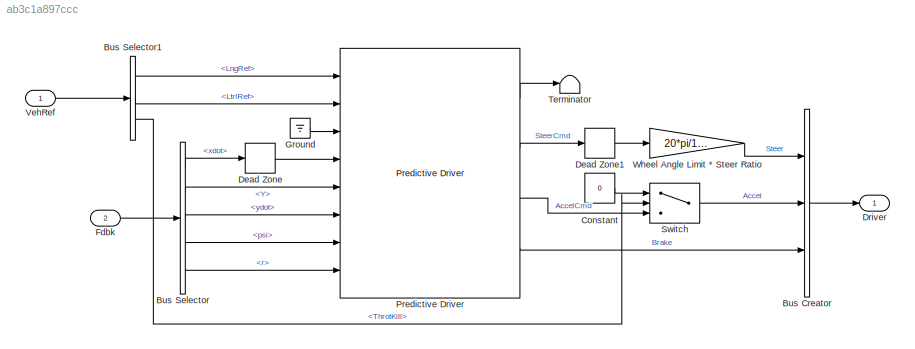
MODEL slx_ab3c1a897ccc
KIND model
CONFIG AbsTol = auto
CONFIG EnableMultiTasking = off
CONFIG FixedStep = auto
CONFIG MaxStep = auto
CONFIG MinStep = auto
CONFIG RelTol = 1e-3
CONFIG SampleTimeConstraint = Unconstrained
CONFIG Solver = VariableStepAuto
CONFIG SolverName = VariableStepAuto
CONFIG StartTime = 0.0
CONFIG StopTime = 10.0
WORKSPACE source: mxarray member
WORKSPACE VEH: object (value not decoded)
BLOCK [BusCreator] Bus Creator
  DisplayOption = bar
  InheritFromInputs = on
  Inputs = 3
  Ports = [3, 1]
BLOCK [BusSelector] Bus Selector
  OutputSignals = Body.xdot,Body.Y,Body.ydot,Body.psi,Body.r
  Ports = [1, 5]
BLOCK [BusSelector] Bus Selector1
  OutputSignals = LngRef,LtrlRef,ThrotKill
  Ports = [1, 3]
BLOCK [Constant] Constant
  Value = 0
BLOCK [DeadZone] Dead Zone
  ZeroCross = off
BLOCK [DeadZone] Dead Zone1
  LowerValue = -1e-2
  UpperValue = 1e-2
  ZeroCross = off
BLOCK [Outport] Driver
  VectorParamsAs1DForOutWhenUnconnected = off
BLOCK [Inport] Fdbk
  Port = 2
BLOCK [Ground] Ground
BLOCK [Reference] Predictive Driver  REF=vehdynlibdriver/Predictive Driver
  Ports = [8, 4]
  SourceBlock = vehdynlibdriver/Predictive Driver
  SourceProductBaseCode = VE
  SourceType = Predictive Driver
BLOCK [Switch] Switch
  Criteria = u2 > Threshold
  InputSameDT = off
  SaturateOnIntegerOverflow = off
BLOCK [Terminator] Terminator
BLOCK [Inport] VehRef
BLOCK [Gain] Wheel Angle Limit * Steer Ratio
  Gain = 20*pi/180*5.2
LINE Bus Creator:1 -> Driver:1
LINE Bus Selector1:1 -> Predictive Driver:1
LINE Bus Selector1:2 -> Predictive Driver:2
LINE Bus Selector1:3 -> Switch:2
LINE Bus Selector:1 -> Dead Zone:1
LINE Bus Selector:2 -> Predictive Driver:5
LINE Bus Selector:3 -> Predictive Driver:6
LINE Bus Selector:4 -> Predictive Driver:7
LINE Bus Selector:5 -> Predictive Driver:8
LINE Constant:1 -> Switch:1
LINE Dead Zone1:1 -> Wheel Angle Limit * Steer Ratio:1
LINE Dead Zone:1 -> Predictive Driver:4
LINE Fdbk:1 -> Bus Selector:1
LINE Ground:1 -> Predictive Driver:3
LINE Predictive Driver:1 -> Terminator:1
LINE Predictive Driver:2 -> Dead Zone1:1
LINE Predictive Driver:3 -> Switch:3
LINE Predictive Driver:4 -> Bus Creator:3
LINE Switch:1 -> Bus Creator:2
LINE VehRef:1 -> Bus Selector1:1
LINE Wheel Angle Limit * Steer Ratio:1 -> Bus Creator:1
